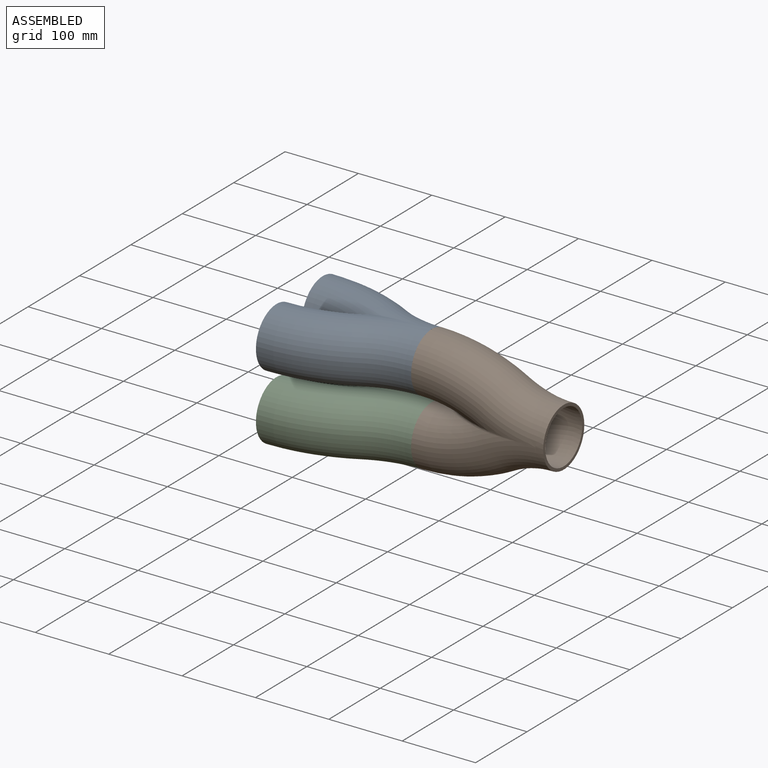
[diagram: assembled view]
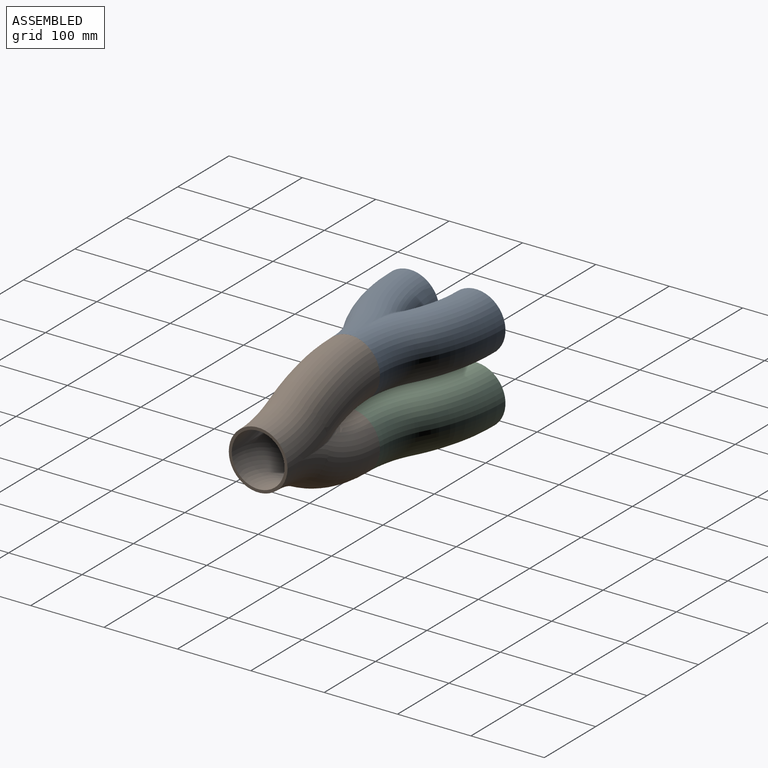
[diagram: assembled view, second angle]
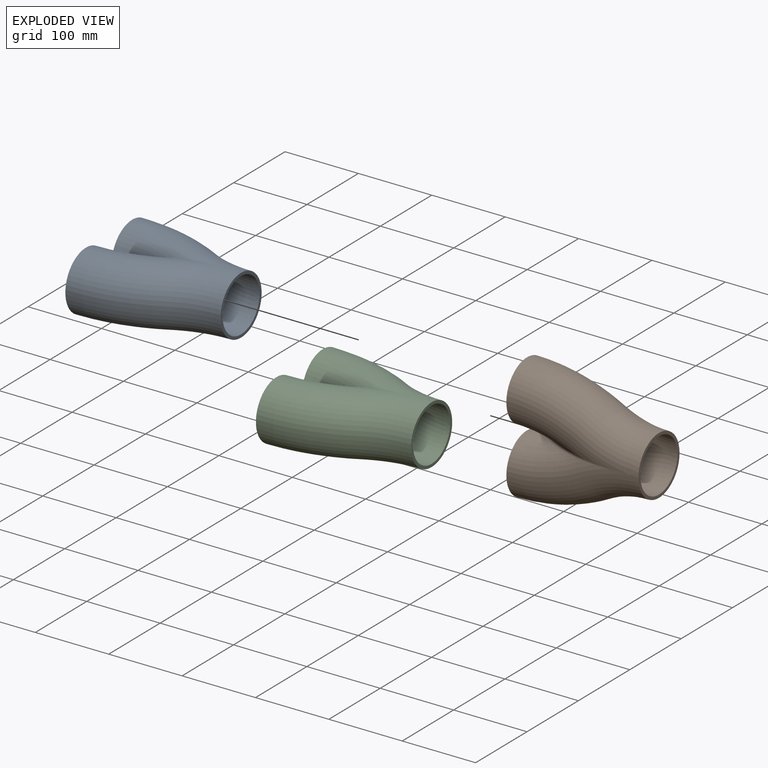
[diagram: exploded view]
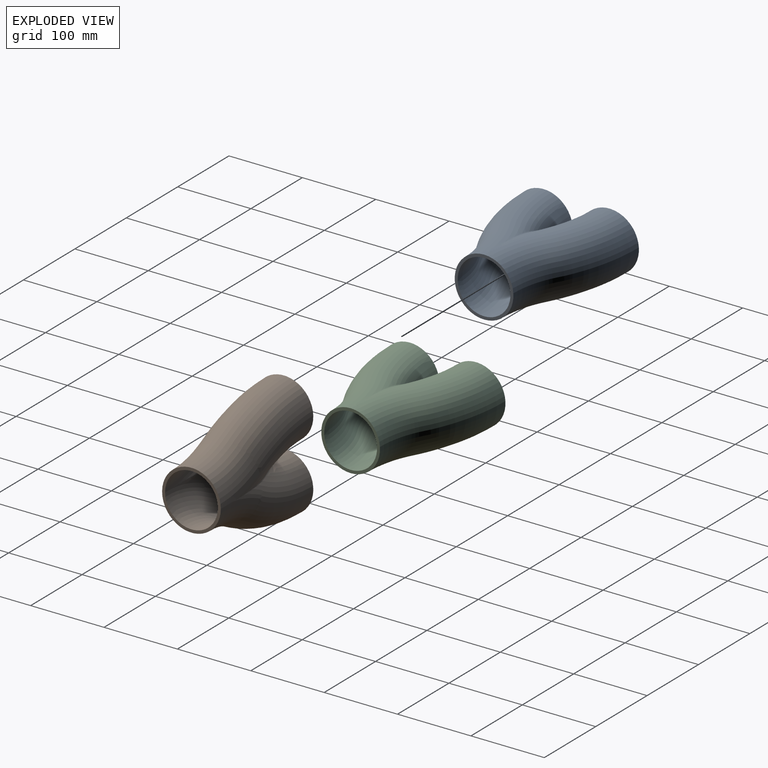
[diagram: exploded view, second angle]
ASSEMBLY  parts=3 mates=2
PART A: 17 faces, bbox 180x80x211.6 mm
  f0: torus R=170mm, axis (0,1,0), area 9335.2mm2, adj f1,f2,f14,f16
  f1: torus R=212.5mm, axis (0,-1,0), area 21874.7mm2, adj f0,f3,f15
  f2: plane 80x80mm, normal (1,0,0), area 955mm2, adj f0,f4,f6,f9
  f3: plane 80x80mm, normal (-1,0,0), area 955mm2, adj f1,f5
  f4: torus R=170mm, axis (0,1,0), area 10087.4mm2, adj f2,f5,f11,f13
  f5: torus R=212.5mm, axis (0,-1,0), area 23451.7mm2, adj f3,f4,f12
  f6: torus R=170mm, axis (0,1,0), area 9335.2mm2, adj f2,f7,f14,f16
  f7: torus R=212.5mm, axis (0,-1,0), area 21874.3mm2, adj f6,f8,f15
  f8: plane 80x80mm, normal (-1,0,0), area 955mm2, adj f7,f10
  f9: torus R=170mm, axis (0,1,0), area 10087.4mm2, adj f2,f10,f11,f13
  f10: torus R=212.5mm, axis (0,-1,0), area 23451.1mm2, adj f8,f9,f12
  f11: bspline ~94.26x8.14mm, area 92mm2, adj f4,f9,f12
  f12: bspline ~76.1x72.27mm, area 811.8mm2, adj f5,f10,f11,f13
  f13: bspline ~94.26x8.13mm, area 92mm2, adj f4,f9,f12
  f14: bspline ~93.67x9.02mm, area 102mm2, adj f0,f6,f15
  f15: bspline ~61.55x50.04mm, area 594.8mm2, adj f1,f7,f14,f16
  f16: bspline ~91.47x8.15mm, area 102mm2, adj f0,f6,f15
PART B: same geometry as A
PART C: same geometry as A
PLACE A rot(axis=(-1,0,0),90deg) t=(-180,0,45)mm
PLACE B at identity fixed
PLACE C rot(axis=(-1,0,0),90deg) t=(-180,0,-45)mm
MATE fastened B.f8 <-> C.f2  axis (-1,0,0) through (-180,0,-45)mm
MATE fastened B.f3 <-> A.f2  axis (-1,0,0) through (-180,0,45)mm
